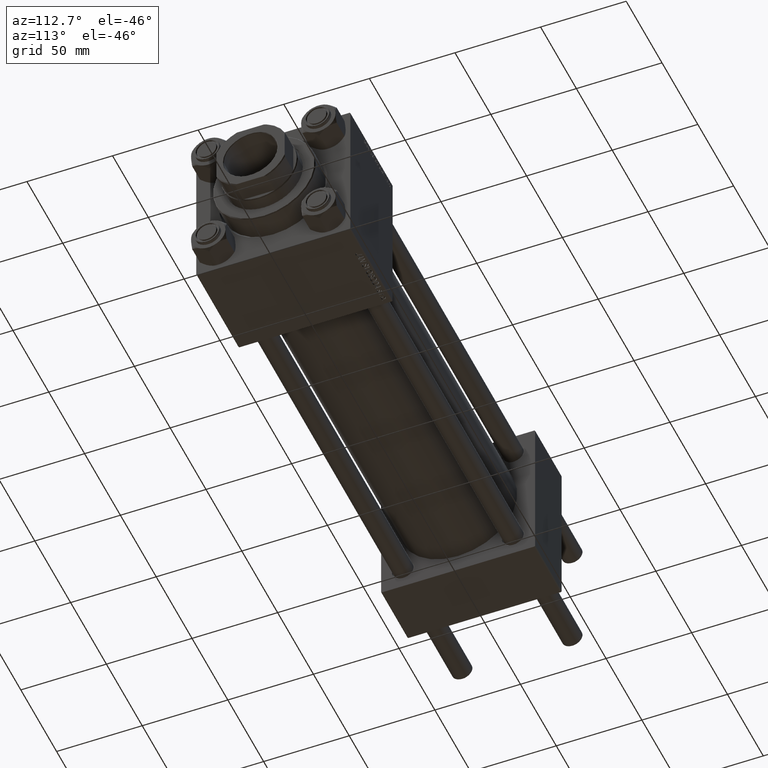
[diagram: clean part render]
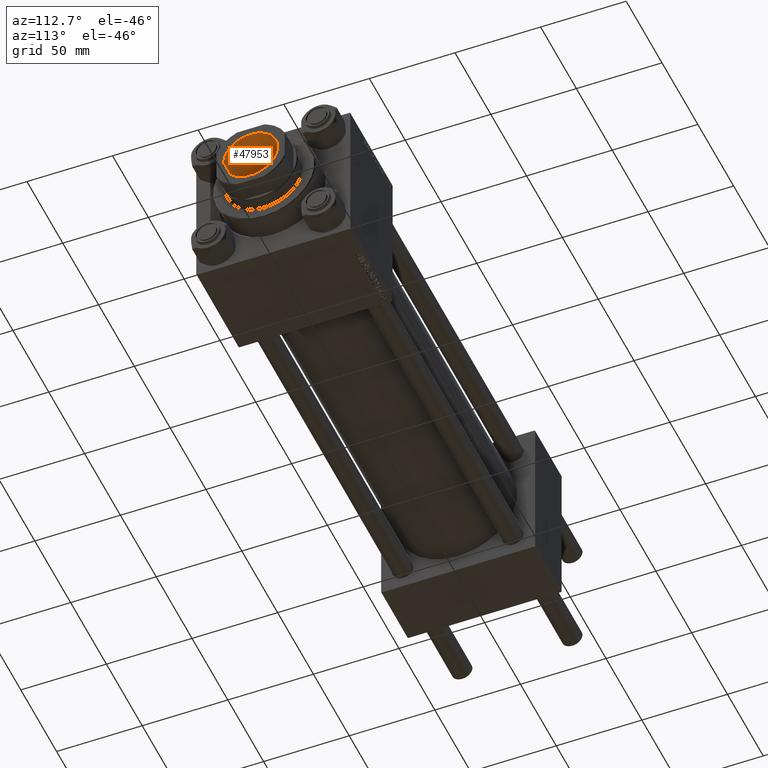
[diagram: same view with one face highlighted and labeled with its STEP entity id]
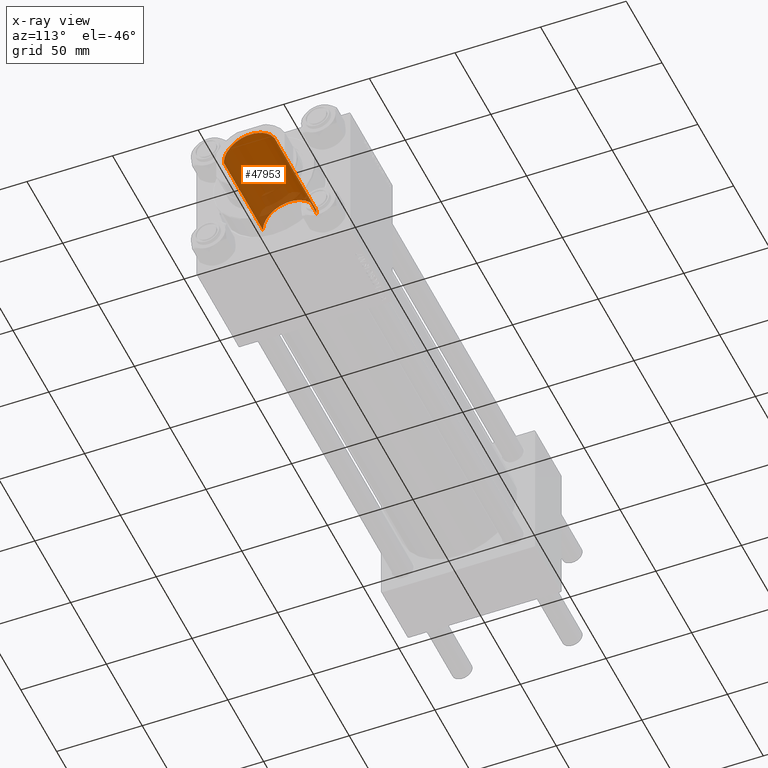
[diagram: x-ray of the same camera — body ghosted, the highlighted face saturated]
A machine part, auxiliary view. The second image highlights one B-rep face of the part: STEP entity #47953.
The next image is the same camera in x-ray: the body ghosted, the highlighted face saturated — about 24% of this face is hidden behind the body in this view.
In plain terms, the highlighted cylindrical surface (edge-blend (fillet) strip) has radius 15.75 mm, axis along (1, 0, -0).
Its self-contained STEP definition (entity closure, byte-faithful):
#1175 = VERTEX_POINT ( 'NONE', #38588 ) ;
#1426 = LINE ( 'NONE', #36123, #11312 ) ;
#1672 = DIRECTION ( 'NONE',  ( -0.000000000000000000, -0.000000000000000000, 1.000000000000000000 ) ) ;
#3249 = DIRECTION ( 'NONE',  ( -0.000000000000000000, -0.000000000000000000, 1.000000000000000000 ) ) ;
#3293 = EDGE_CURVE ( 'NONE', #31883, #43923, #1426, .T. ) ;
#4143 = CIRCLE ( 'NONE', #17033, 15.74999999999999289 ) ;
#4538 = DIRECTION ( 'NONE',  ( 0.000000000000000000, 0.000000000000000000, 1.000000000000000000 ) ) ;
#7234 = DIRECTION ( 'NONE',  ( -0.000000000000000000, -0.000000000000000000, 1.000000000000000000 ) ) ;
#7771 = CARTESIAN_POINT ( 'NONE',  ( 0.000000000000000000, 0.000000000000000000, 235.0000000000000000 ) ) ;
#7915 = CARTESIAN_POINT ( 'NONE',  ( 15.74999999999999289, 0.000000000000000000, 289.6999999999998749 ) ) ;
#8215 = CYLINDRICAL_SURFACE ( 'NONE', #31914, 15.74999999999999289 ) ;
#9772 = CIRCLE ( 'NONE', #11370, 15.74999999999998934 ) ;
#10597 = CARTESIAN_POINT ( 'NONE',  ( -15.74999999999999289, 1.928818708657080556E-15, 289.6999999999998749 ) ) ;
#11312 = VECTOR ( 'NONE', #1672, 1000.000000000000000 ) ;
#11370 = AXIS2_PLACEMENT_3D ( 'NONE', #7771, #3249, #45714 ) ;
#12269 = ORIENTED_EDGE ( 'NONE', *, *, #3293, .T. ) ;
#14651 = CARTESIAN_POINT ( 'NONE',  ( 0.000000000000000000, 0.000000000000000000, 289.6999999999998749 ) ) ;
#15078 = VERTEX_POINT ( 'NONE', #7915 ) ;
#17033 = AXIS2_PLACEMENT_3D ( 'NONE', #14651, #4538, #34976 ) ;
#18623 = CARTESIAN_POINT ( 'NONE',  ( -15.74999999999998934, 1.928818708657080161E-15, 235.0000000000000000 ) ) ;
#18801 = CARTESIAN_POINT ( 'NONE',  ( 15.74999999999999289, 0.000000000000000000, 290.0000000000000000 ) ) ;
#22585 = ORIENTED_EDGE ( 'NONE', *, *, #26772, .F. ) ;
#23525 = ORIENTED_EDGE ( 'NONE', *, *, #31337, .F. ) ;
#23576 = CARTESIAN_POINT ( 'NONE',  ( 0.000000000000000000, 0.000000000000000000, 290.0000000000000000 ) ) ;
#25100 = VECTOR ( 'NONE', #7234, 1000.000000000000000 ) ;
#26772 = EDGE_CURVE ( 'NONE', #31883, #1175, #9772, .T. ) ;
#30883 = EDGE_CURVE ( 'NONE', #43923, #15078, #4143, .T. ) ;
#31337 = EDGE_CURVE ( 'NONE', #1175, #15078, #37897, .T. ) ;
#31883 = VERTEX_POINT ( 'NONE', #18623 ) ;
#31914 = AXIS2_PLACEMENT_3D ( 'NONE', #23576, #41305, #43381 ) ;
#34976 = DIRECTION ( 'NONE',  ( 1.000000000000000000, 0.000000000000000000, 0.000000000000000000 ) ) ;
#36123 = CARTESIAN_POINT ( 'NONE',  ( -15.74999999999999289, 1.928818708657080556E-15, 290.0000000000000000 ) ) ;
#37897 = LINE ( 'NONE', #18801, #25100 ) ;
#38588 = CARTESIAN_POINT ( 'NONE',  ( 15.74999999999998934, 0.000000000000000000, 235.0000000000000000 ) ) ;
#41305 = DIRECTION ( 'NONE',  ( -0.000000000000000000, -0.000000000000000000, 1.000000000000000000 ) ) ;
#42628 = FACE_OUTER_BOUND ( 'NONE', #48475, .T. ) ;
#43381 = DIRECTION ( 'NONE',  ( 1.000000000000000000, 0.000000000000000000, 0.000000000000000000 ) ) ;
#43923 = VERTEX_POINT ( 'NONE', #10597 ) ;
#45714 = DIRECTION ( 'NONE',  ( 1.000000000000000000, 0.000000000000000000, 0.000000000000000000 ) ) ;
#47953 = ADVANCED_FACE ( 'NONE', ( #42628 ), #8215, .F. ) ;
#48475 = EDGE_LOOP ( 'NONE', ( #22585, #12269, #48731, #23525 ) ) ;
#48731 = ORIENTED_EDGE ( 'NONE', *, *, #30883, .T. ) ;